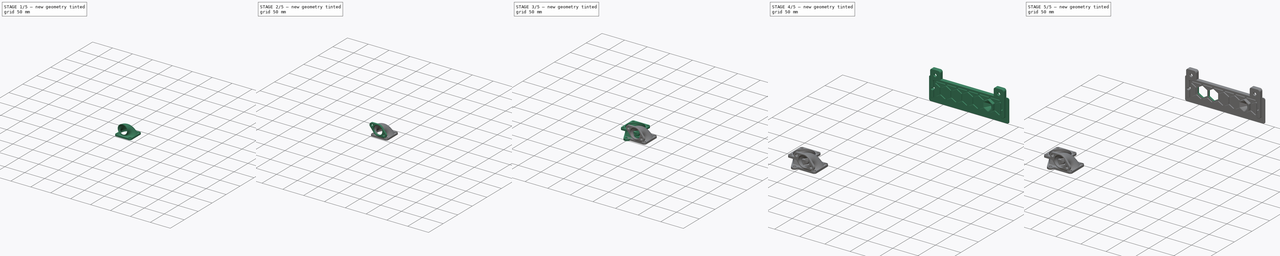
[diagram: build sequence overview — one tinted view per stage of 5, left to right]
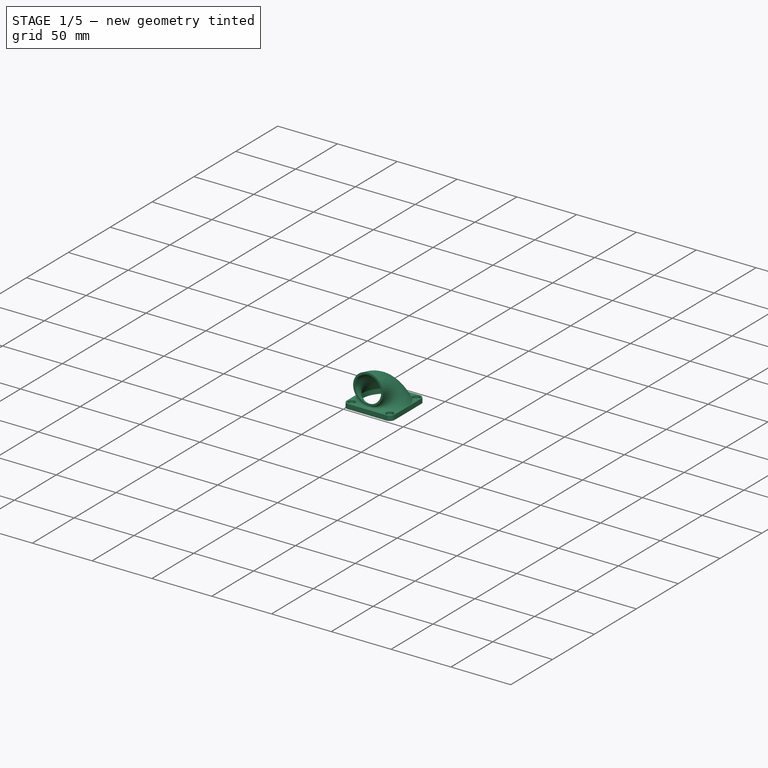
[diagram: stage 1 of 5 — iso view after this stage's code; geometry added in this stage tinted green]
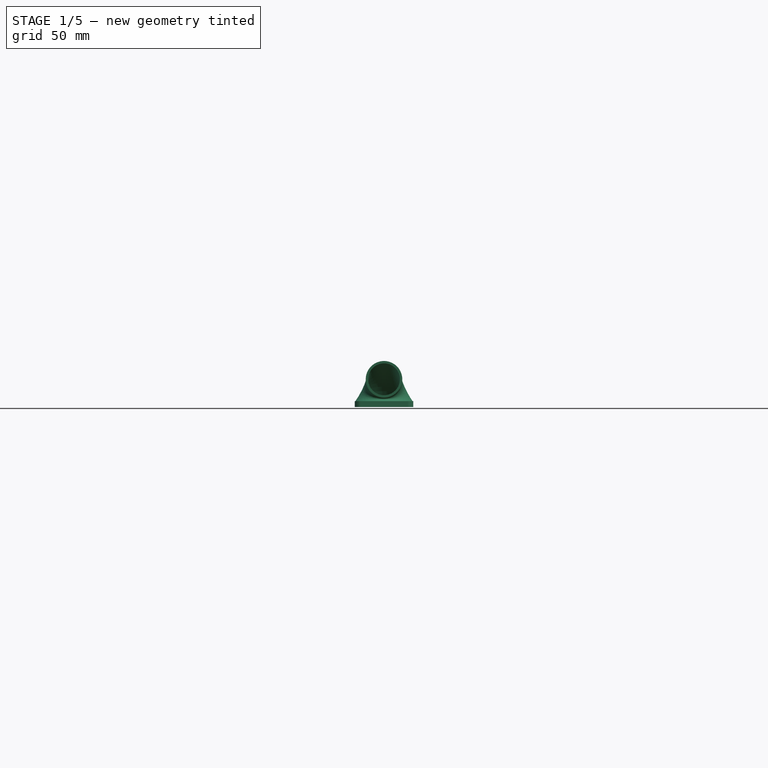
[diagram: stage 1 of 5 — front view after this stage's code; geometry added in this stage tinted green]
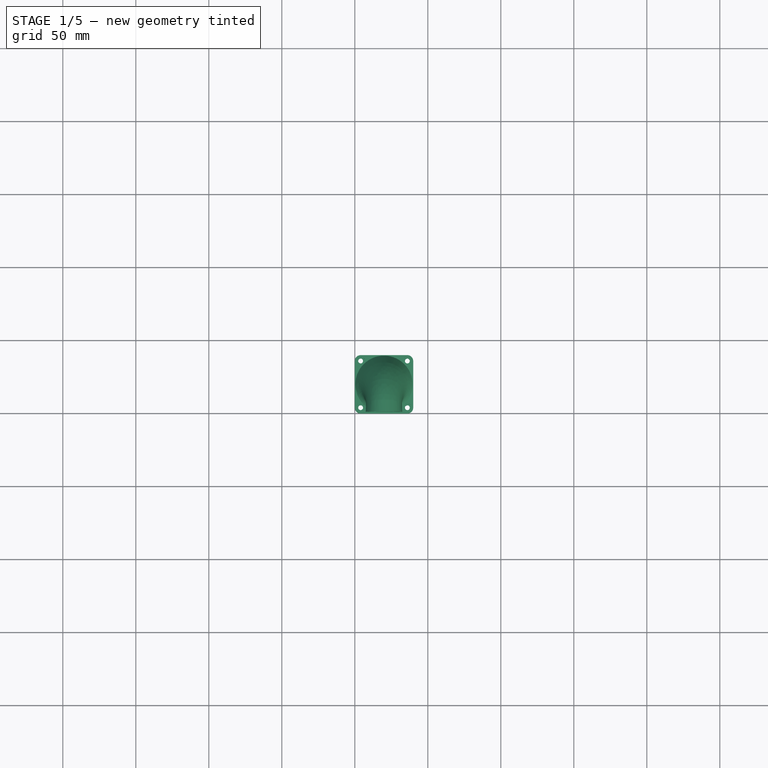
[diagram: stage 1 of 5 — top view after this stage's code; geometry added in this stage tinted green]
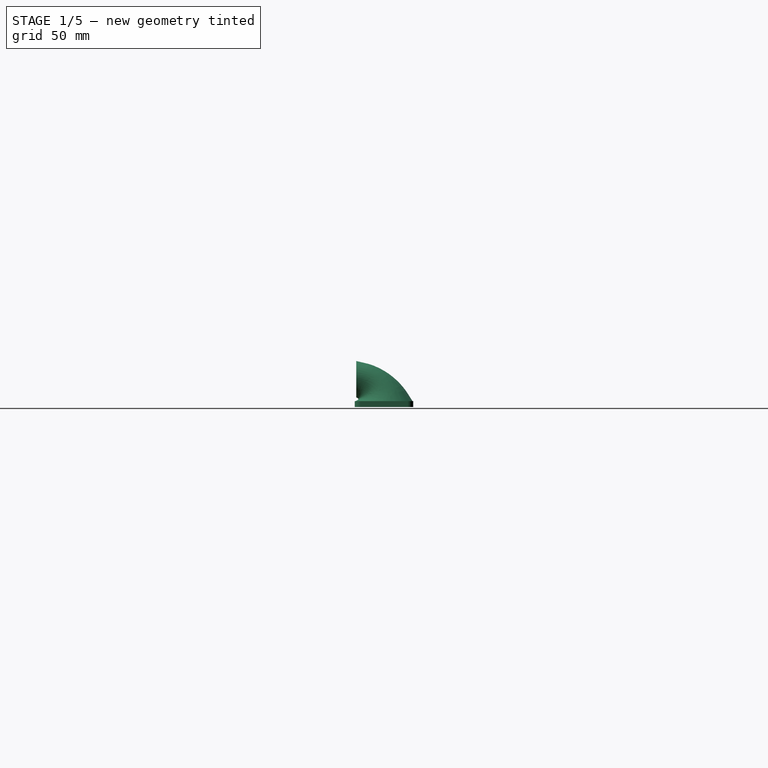
[diagram: stage 1 of 5 — right view after this stage's code; geometry added in this stage tinted green]
FCSTD DOCUMENT  (FreeCAD 1.1R20260414 (Git shallow))
Label: FumeExtraction
License: All rights reserved
LicenseURL: https://en.wikipedia.org/wiki/All_rights_reserved
objects: Sketcher::SketchObject×12, App::Point×4, PartDesign::Pocket×4, PartDesign::Chamfer×4, PartDesign::Pad×4, Part::Feature×3, PartDesign::Body×3, PartDesign::AdditiveLoft×2, PartDesign::FeatureBase×1, Part::DatumPlane×1, PartDesign::Fillet×1, App::Part×1
note: 77 computed .brp shape members not serialized (recipe doc carries the construction recipe); baked Part::Feature solids carry a one-line shape summary decoded from their .brp

FEATURE [PartDesign::Body] Body001  label="ExhaustToFanAdapter"
  AllowCompound = true
  Group = -> [Sketch001,Pad,Sketch002,Pocket002,Sketch003,DatumPlane,Sketch004,AdditiveLoft,Sketch005,Pad001,Chamfer001,Fillet]
  Origin = -> Origin002
  Placement = pos=(0,-0.25,0) rot=(0,0,1;0rad)
  Tip = -> Fillet
FEATURE [Sketcher::SketchObject] Sketch006  label="FanFlangeBodySketch001"
  ArcFitTolerance = 1e-06
  AttachmentSupport = -> [Origin004]
  ExternalTypes = [0]
  FullyConstrained = true
  MakeInternals = false
  MapMode = 5
  _ExternalGeoVersion = 1
  sketch-geometry (20):
    g0: LineSegment StartX=4 StartY=2.425e-13 StartZ=0 EndX=36 EndY=2.425e-13 EndZ=0
    g1: LineSegment StartX=40 StartY=4 StartZ=0 EndX=40 EndY=36 EndZ=0
    g2: LineSegment StartX=36 StartY=40 StartZ=0 EndX=4 EndY=40 EndZ=0
    g3: LineSegment StartX=2.425e-13 StartY=36 StartZ=0 EndX=2.425e-13 EndY=4 EndZ=0
    g4: ArcOfCircle CenterX=4 CenterY=36 CenterZ=0 NormalX=0 NormalY=0 NormalZ=1 AngleXU=0 Radius=4 StartAngle=1.5708 EndAngle=3.14159
    g5: GeomPoint [constr] X=0 Y=40 Z=0
    g6: ArcOfCircle CenterX=36 CenterY=36 CenterZ=0 NormalX=0 NormalY=0 NormalZ=1 AngleXU=0 Radius=4 StartAngle=3e-16 EndAngle=1.5708
    g7: GeomPoint [constr] X=40 Y=40 Z=0
    g8: ArcOfCircle CenterX=36 CenterY=4 CenterZ=0 NormalX=0 NormalY=0 NormalZ=1 AngleXU=0 Radius=4 StartAngle=4.71239 EndAngle=6.28319
    g9: GeomPoint [constr] X=40 Y=0 Z=0
    g10: ArcOfCircle CenterX=4 CenterY=4 CenterZ=0 NormalX=0 NormalY=0 NormalZ=1 AngleXU=0 Radius=4 StartAngle=3.14159 EndAngle=4.71239
    g11: GeomPoint [constr] X=0 Y=0 Z=0
    g12: Circle CenterX=4 CenterY=36 CenterZ=0 NormalX=0 NormalY=0 NormalZ=1 AngleXU=0 Radius=1.65
    g13: Circle CenterX=36 CenterY=36 CenterZ=0 NormalX=0 NormalY=0 NormalZ=1 AngleXU=0 Radius=1.65
    g14: Circle CenterX=36 CenterY=4 CenterZ=0 NormalX=0 NormalY=0 NormalZ=1 AngleXU=0 Radius=1.65
    g15: Circle CenterX=4 CenterY=4 CenterZ=0 NormalX=0 NormalY=0 NormalZ=1 AngleXU=0 Radius=1.65
    g16: LineSegment [constr] StartX=4 StartY=36 StartZ=0 EndX=36 EndY=36 EndZ=0
    g17: LineSegment [constr] StartX=4 StartY=4 StartZ=0 EndX=4 EndY=36 EndZ=0
    g18: GeomPoint [constr] X=20 Y=20 Z=0
    g19: Circle CenterX=20 CenterY=20 CenterZ=0 NormalX=0 NormalY=0 NormalZ=1 AngleXU=0 Radius=18
  constraints (46):
    c: Horizontal(g0)
    c: Horizontal(g2)
    c: Vertical(g1)
    c: Vertical(g3)
    c: Coincident(g11,g-1)
    c: PointOnObject(g5,g3)
    c: PointOnObject(g5,g2)
    c: Tangent(g3,g4) = -1.5708
    c: Tangent(g2,g4) = -1.5708
    c: PointOnObject(g7,g2)
    c: PointOnObject(g7,g1)
    c: Tangent(g2,g6) = -1.5708
    c: Tangent(g1,g6) = -1.5708
    c: PointOnObject(g9,g1)
    c: PointOnObject(g9,g0)
    c: Tangent(g1,g8) = -1.5708
    c: Tangent(g0,g8) = -1.5708
    c: PointOnObject(g11,g0)
    c: PointOnObject(g11,g3)
    c: Tangent(g0,g10) = -1.5708
    c: Tangent(g3,g10) = -1.5708
    c: Radius(g6) = 4
    c: Equal(g6,g4)
    c: Equal(g4,g8)
    c: Equal(g8,g10)
    c: Equal(g2,g1)
    c: DistanceY(g9,g7) = 40
    c: Diameter(g14) = 3.3
    c: Coincident(g16,g12)
    c: Coincident(g16,g13)
    c: Horizontal(g16)
    c: Coincident(g17,g15)
    c: Coincident(g17,g12)
    c: Vertical(g17)
    c: Horizontal(g15,g14)
    c: Vertical(g14,g13)
    c: Equal(g16,g17)
    c: Equal(g14,g13)
    c: Equal(g13,g12)
    c: Equal(g12,g15)
    c: Distance(g18,g-1) = 20
    c: Distance(g18,g-2) = 20
    c: Symmetric(g13,g15,g18)
    c: DistanceX(g16,g16) = 32
    c: Coincident(g19,g18)
    c: Diameter(g19) = 36
FEATURE [PartDesign::Pad] Pad002  label="FanFlangeBody001"
  Direction = (0,0,1)
  Length = 4
  Length2 = 10
  Profile = -> Sketch006
  ReferenceAxis = -> Sketch006 [N_Axis]
  Refine = true
  SideType = 0
  Suppressed = false
  Type = 0
  Type2 = 0
FEATURE [Sketcher::SketchObject] Sketch007  label="FanFlangeCountersinkSketch"
  ArcFitTolerance = 1e-06
  AttachmentSupport = -> [Pad002]
  ExternalGeometry = -> [Pad002]
  ExternalTypes = [0,0,0,0]
  FullyConstrained = true
  MakeInternals = false
  MapMode = 5
  Placement = pos=(0,0,4) rot=(0,0,1;0rad)
  _ExternalGeoVersion = 1
  sketch-geometry (4):
    g0: Circle CenterX=4 CenterY=36 CenterZ=0 NormalX=0 NormalY=0 NormalZ=1 AngleXU=0 Radius=3
    g1: Circle CenterX=36 CenterY=36 CenterZ=0 NormalX=0 NormalY=0 NormalZ=1 AngleXU=0 Radius=3
    g2: Circle CenterX=36 CenterY=4 CenterZ=0 NormalX=0 NormalY=0 NormalZ=1 AngleXU=0 Radius=3
    g3: Circle CenterX=4 CenterY=4 CenterZ=0 NormalX=0 NormalY=0 NormalZ=1 AngleXU=0 Radius=3
  constraints (8):
    c: Coincident(g0,g-6)
    c: Coincident(g1,g-3)
    c: Coincident(g2,g-4)
    c: Coincident(g3,g-5)
    c: Diameter(g1) = 6
    c: Equal(g1,g2)
    c: Equal(g2,g3)
    c: Equal(g3,g0)
FEATURE [PartDesign::Pocket] Pocket003  label="FanFlangeCountersink"
  BaseFeature = -> Pad002
  Direction = (0,0,-1)
  Length = 2
  Length2 = 5
  Profile = -> Sketch007
  ReferenceAxis = -> Sketch007 [N_Axis]
  Refine = true
  SideType = 0
  Suppressed = false
  Type = 0
  Type2 = 0
FEATURE [Sketcher::SketchObject] Sketch008  label="PipeStartSketch"
  ArcFitTolerance = 1e-06
  AttachmentSupport = -> [Pocket003]
  ExternalGeometry = -> [Pocket003]
  ExternalTypes = [0]
  FullyConstrained = true
  MakeInternals = false
  MapMode = 5
  Placement = pos=(0,0,4) rot=(0,0,1;0rad)
  _ExternalGeoVersion = 1
  sketch-geometry (2):
    g0: Circle CenterX=20 CenterY=20 CenterZ=0 NormalX=0 NormalY=0 NormalZ=1 AngleXU=0 Radius=18
    g1: Circle CenterX=20 CenterY=20 CenterZ=0 NormalX=0 NormalY=0 NormalZ=1 AngleXU=0 Radius=19.6
  constraints (4):
    c: Coincident(g0,g-3)
    c: Coincident(g1,g0)
    c: Distance(g0,g1) = 1.6
    c: Equal(g0,g-3)
FEATURE [Sketcher::SketchObject] Sketch009  label="PipeMidSketch"
  ArcFitTolerance = 1e-06
  AttachmentOffset = pos=(0,2,0) rot=(-1,0,0;0.523599rad)
  AttachmentSupport = -> [Origin004]
  ExternalTypes = [0]
  FullyConstrained = true
  MakeInternals = false
  MapMode = 5
  Placement = pos=(0,4e-16,2) rot=(1,0,0;1.0472rad)
  _ExternalGeoVersion = 1
  sketch-geometry (2):
    g0: Circle CenterX=20 CenterY=17 CenterZ=0 NormalX=0 NormalY=0 NormalZ=1 AngleXU=0 Radius=10.9
    g1: Circle CenterX=20 CenterY=17 CenterZ=0 NormalX=0 NormalY=0 NormalZ=1 AngleXU=0 Radius=12.5
  constraints (5):
    c: Coincident(g1,g0)
    c: Diameter(g1) = 25
    c: Distance(g0,g-1) = 17
    c: Distance(g0,g-2) = 20
    c: Distance(g1,g0) = 1.6
FEATURE [Sketcher::SketchObject] Sketch010  label="PipeFinishSketch"
  ArcFitTolerance = 1e-06
  AttachmentOffset = pos=(0,3,-1) rot=(0,0,1;0rad)
  AttachmentSupport = -> [Origin004]
  ExternalTypes = [0]
  FullyConstrained = true
  MakeInternals = false
  MapMode = 5
  Placement = pos=(0,1,3) rot=(1,0,0;1.5708rad)
  _ExternalGeoVersion = 1
  sketch-geometry (2):
    g0: Circle CenterX=20 CenterY=16 CenterZ=0 NormalX=0 NormalY=0 NormalZ=1 AngleXU=0 Radius=10.9
    g1: Circle CenterX=20 CenterY=16 CenterZ=0 NormalX=0 NormalY=0 NormalZ=1 AngleXU=0 Radius=12.5
  constraints (5):
    c: Coincident(g1,g0)
    c: Distance(g0,g-1) = 16
    c: Distance(g0,g-2) = 20
    c: Diameter(g1) = 25
    c: Distance(g0,g1) = 1.6
FEATURE [PartDesign::AdditiveLoft] AdditiveLoft001
  BaseFeature = -> Pocket003
  Closed = false
  Profile = -> Sketch008
  Refine = true
  Ruled = false
  Sections = -> [Sketch009,Sketch010]
  Suppressed = false
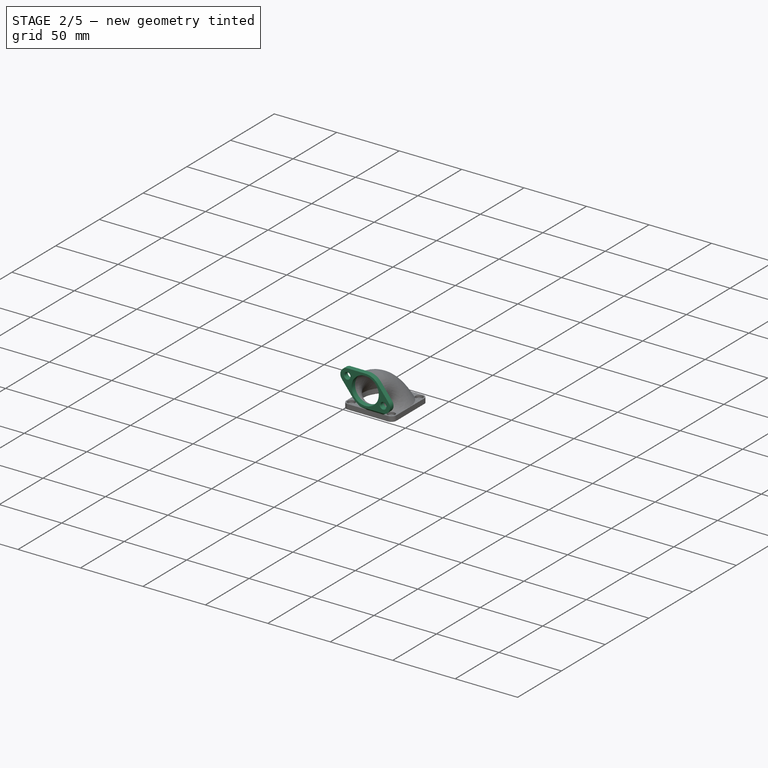
[diagram: stage 2 of 5 — iso view after this stage's code; geometry added in this stage tinted green]
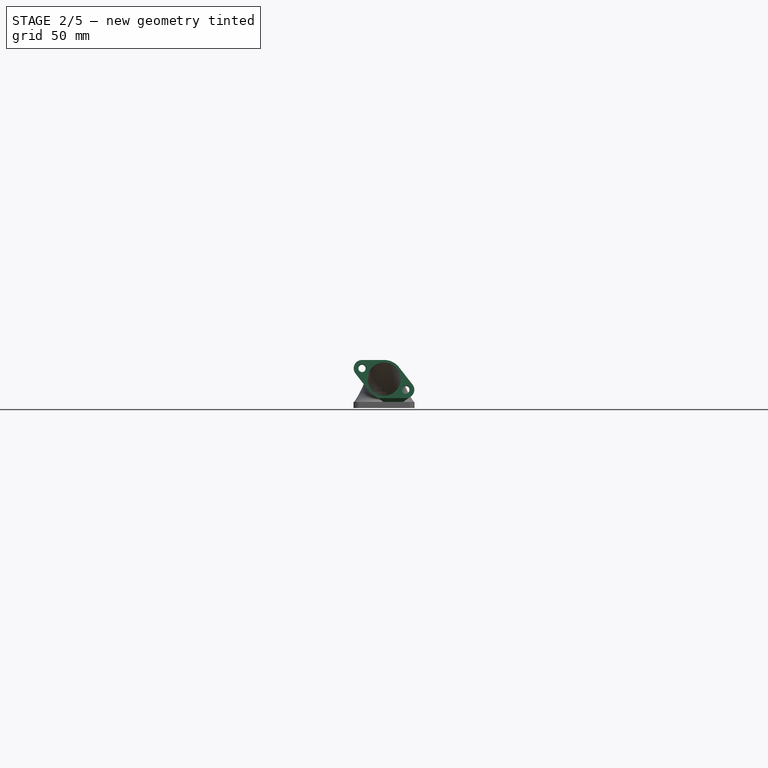
[diagram: stage 2 of 5 — front view after this stage's code; geometry added in this stage tinted green]
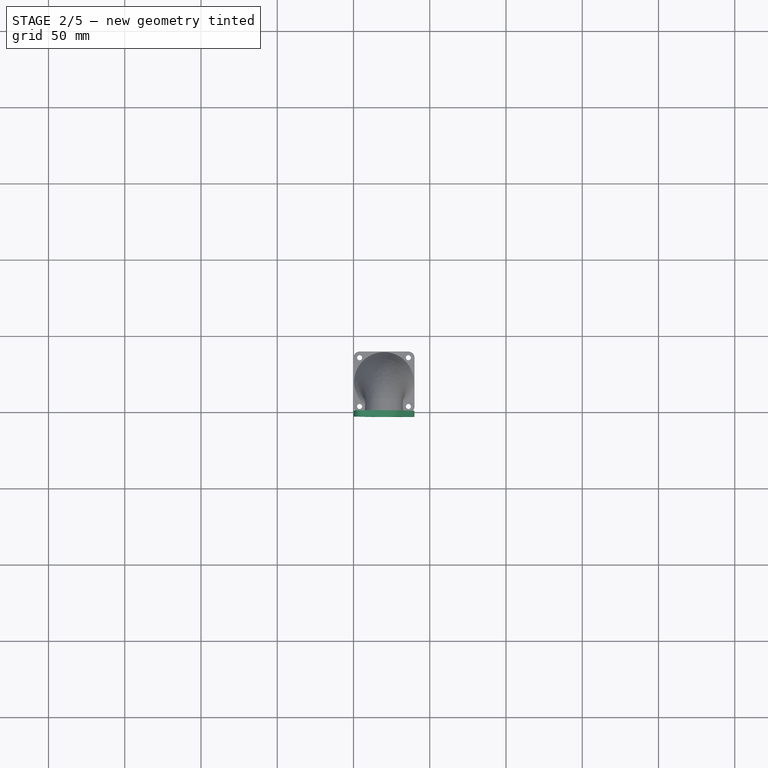
[diagram: stage 2 of 5 — top view after this stage's code; geometry added in this stage tinted green]
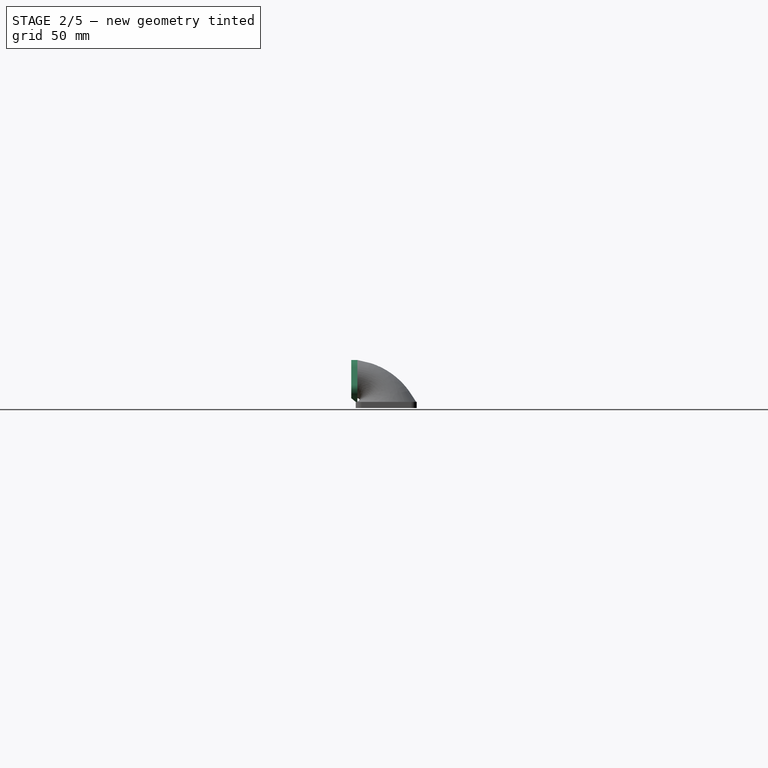
[diagram: stage 2 of 5 — right view after this stage's code; geometry added in this stage tinted green]
FEATURE [Sketcher::SketchObject] Sketch011  label="OutletFlangeSketch"
  ArcFitTolerance = 1e-06
  AttachmentSupport = -> [AdditiveLoft001]
  ExternalGeometry = -> [AdditiveLoft001]
  ExternalTypes = [0,0]
  FullyConstrained = true
  MakeInternals = false
  MapMode = 5
  Placement = pos=(0,1,0) rot=(1,0,0;1.5708rad)
  _ExternalGeoVersion = 1
  sketch-geometry (13):
    g0: Circle CenterX=20 CenterY=19 CenterZ=0 NormalX=0 NormalY=0 NormalZ=1 AngleXU=0 Radius=10.9
    g1: ArcOfCircle CenterX=20 CenterY=19 CenterZ=0 NormalX=0 NormalY=0 NormalZ=1 AngleXU=0 Radius=12.5 StartAngle=0.665163 EndAngle=1.5708
    g2: ArcOfCircle CenterX=5.61251 CenterY=26 CenterZ=0 NormalX=0 NormalY=0 NormalZ=1 AngleXU=0 Radius=5.5 StartAngle=1.5708 EndAngle=3.80676
    g3: ArcOfCircle CenterX=34.3875 CenterY=12 CenterZ=0 NormalX=0 NormalY=0 NormalZ=1 AngleXU=0 Radius=5.5 StartAngle=5.32325 EndAngle=6.94835
    g4: LineSegment StartX=29.8352 StartY=26.7148 StartZ=0 EndX=38.715 EndY=15.3945 EndZ=0
    g5: LineSegment StartX=20 StartY=31.5 StartZ=0 EndX=5.61251 EndY=31.5 EndZ=0
    g6: LineSegment StartX=32.5513 StartY=4 StartZ=0 EndX=37.5422 EndY=7.49466 EndZ=0
    g7: Circle CenterX=5.61251 CenterY=26 CenterZ=0 NormalX=0 NormalY=0 NormalZ=1 AngleXU=0 Radius=2.35
    g8: Circle CenterX=34.3875 CenterY=12 CenterZ=0 NormalX=0 NormalY=0 NormalZ=1 AngleXU=0 Radius=2.35
    g9: LineSegment StartX=1.28502 StartY=22.6055 StartZ=0 EndX=10.1648 EndY=11.2852 EndZ=0
    g10: LineSegment StartX=19.6291 StartY=4 StartZ=0 EndX=32.5513 EndY=4 EndZ=0
    g11: ArcOfCircle CenterX=20 CenterY=19 CenterZ=0 NormalX=0 NormalY=0 NormalZ=1 AngleXU=0 Radius=12.5 StartAngle=3.80676 EndAngle=4.10152
    g12: LineSegment StartX=19.6291 StartY=4 StartZ=0 EndX=12.8303 EndY=8.7606 EndZ=0
  constraints (30):
    c: Distance(g0,g-1) = 19
    c: Distance(g0,g-2) = 20
    c: Diameter(g0) = 21.8
    c: Coincident(g1,g0)
    c: Tangent(g4,g3) = 1.5708
    c: Tangent(g6,g3) = -1.5708
    c: Tangent(g4,g1) = 1.5708
    c: Tangent(g5,g1) = -1.5708
    c: Tangent(g5,g2) = -1.5708
    c: Radius(g1) = 12.5
    c: Symmetric(g2,g3,g0)
    c: Equal(g3,g2)
    c: Radius(g3) = 5.5
    c: Diameter(g7) = 4.7
    c: Equal(g7,g8)
    c: Coincident(g8,g3)
    c: Coincident(g7,g2)
    c: Distance(g2,g3) = 32
    c: Horizontal(g10)
    c: Tangent(g9,g2) = -1.5708
    c: Coincident(g6,g10)
    c: Distance(g6,g-1) = 4
    c: Horizontal(g5)
    c: Angle(g6,g10) = 2.53073
    c: Coincident(g11,g0)
    c: Coincident(g12,g10)
    c: Tangent(g12,g11) = 1.5708
    c: Tangent(g11,g9) = -1.5708
    c: Equal(g1,g11)
    c: Angle(g10,g12) = 2.53073
FEATURE [App::Point] Origin005
  Role = Origin
FEATURE [PartDesign::Pad] Pad003  label="OutletFlange"
  BaseFeature = -> AdditiveLoft001
  Direction = (0,-1,2e-16)
  Length = 4
  Length2 = 10
  Profile = -> Sketch011
  ReferenceAxis = -> Sketch011 [N_Axis]
  Refine = true
  SideType = 0
  Suppressed = false
  Type = 0
  Type2 = 0
FEATURE [Part::Feature] Part__Feature  label="40mm fan v2"
  shape: bbox 40 x 10 x 40 mm, 104 faces (baked)
FEATURE [Part::Feature] Part__Feature1576  label="40mm fan v001"
  shape: bbox 37.68 x 7.505 x 37.45 mm, 115 faces (baked)
FEATURE [App::Part] _40mm_fan_v2  label="40mm fan v002"
  Group = -> [Part__Feature,Part__Feature1576]
  Origin = -> Origin006
  Placement = pos=(9e-16,27,25) rot=(0,-0.707107,0.707107;3.14159rad)
FEATURE [App::Point] Origin007  label="Origin"
  Role = Origin
FEATURE [PartDesign::Chamfer] Chamfer003  label="OverhangChamfer003"
  Angle = 45
  Base = -> Pad003 [Edge38]
  BaseFeature = -> Pad003
  ChamferType = 1
  FlipDirection = false
  Refine = true
  Size = 2.999
  Size2 = 2.5
  SupportTransform = false
  Suppressed = false
  UseAllEdges = false
FEATURE [PartDesign::Chamfer] Chamfer004  label="CornersChamfer004"
  Angle = 45
  Base = -> Chamfer003 [Edge62,Edge63,Edge66,Edge65,Edge64,Edge44,Edge45]
  BaseFeature = -> Chamfer003
  ChamferType = 0
  FlipDirection = false
  Refine = true
  Size = 0.4
  Size2 = 1
  SupportTransform = false
  Suppressed = false
  UseAllEdges = false
FEATURE [PartDesign::Body] Body002  label="FanToHoseAdapter"
  AllowCompound = true
  Group = -> [Sketch006,Pad002,Sketch007,Pocket003,Sketch008,Sketch009,Sketch010,AdditiveLoft001,Sketch011,Pad003,Chamfer003,Chamfer004]
  Origin = -> Origin004
  Placement = pos=(-20,7,26) rot=(0,0,1;0rad)
  Tip = -> Chamfer004
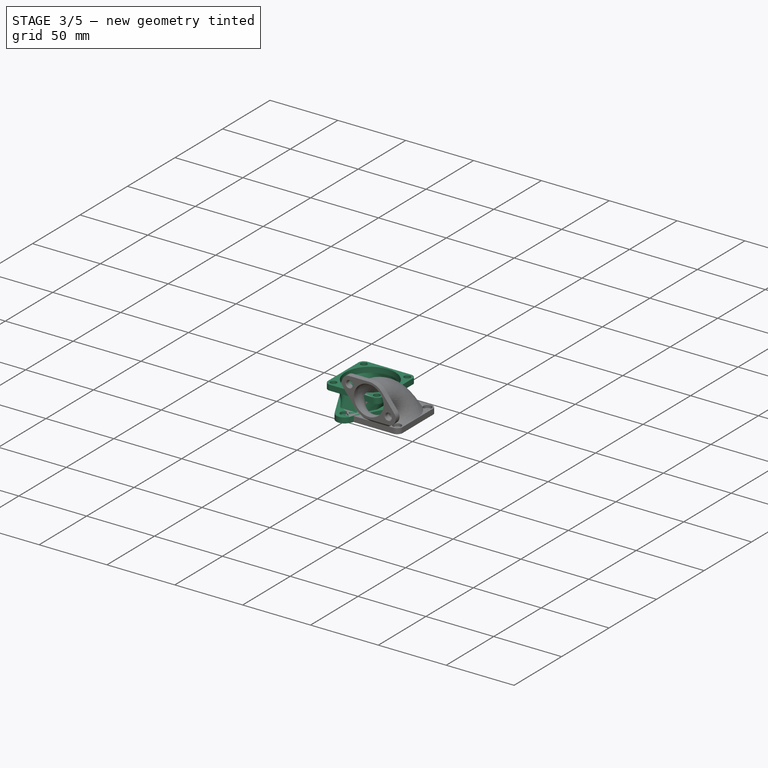
[diagram: stage 3 of 5 — iso view after this stage's code; geometry added in this stage tinted green]
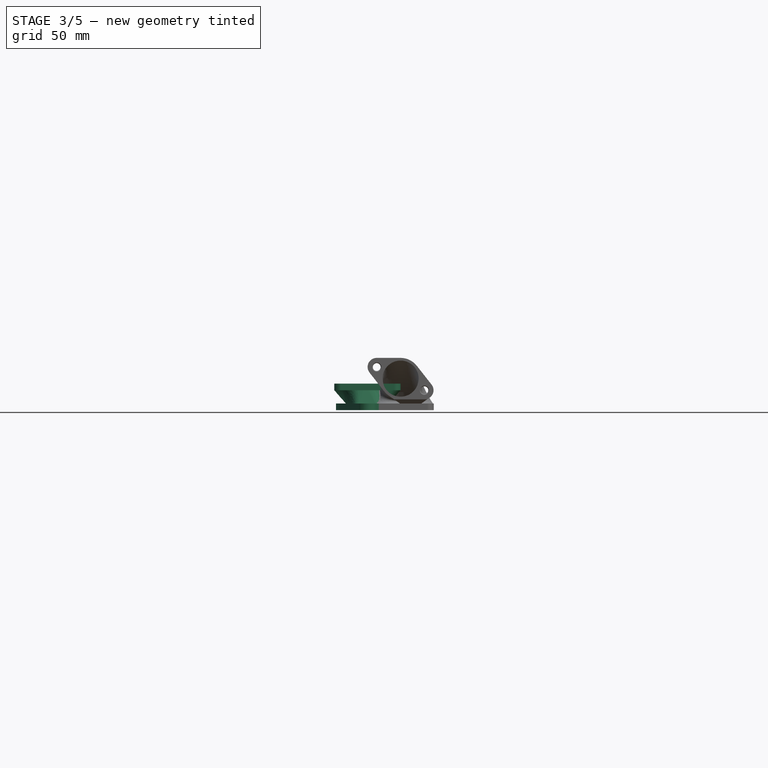
[diagram: stage 3 of 5 — front view after this stage's code; geometry added in this stage tinted green]
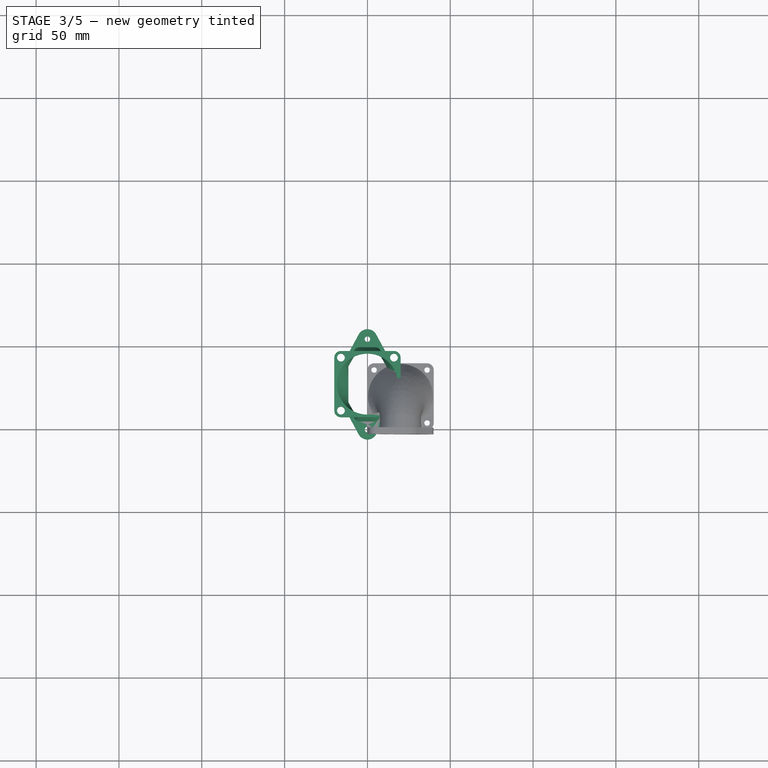
[diagram: stage 3 of 5 — top view after this stage's code; geometry added in this stage tinted green]
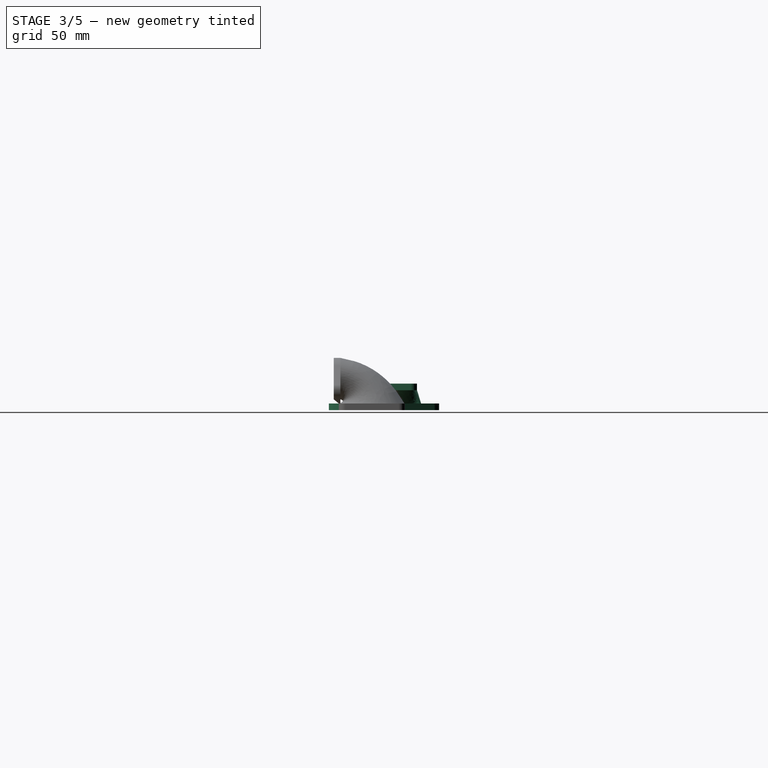
[diagram: stage 3 of 5 — right view after this stage's code; geometry added in this stage tinted green]
FEATURE [PartDesign::Body] Body  label="ExhaustCoverR2WithVent"
  AllowCompound = true
  BaseFeature = -> Part__Feature1575
  Group = -> [BaseFeature,Pocket,Sketch,Pocket001,Chamfer]
  Origin = -> Origin
  Placement = pos=(-108.75,-150.85,-196.5) rot=(0.57735,0.57735,0.57735;2.0944rad)
  Tip = -> Chamfer
FEATURE [Sketcher::SketchObject] Sketch001  label="ExhaustFlangeBodySketch"
  ArcFitTolerance = 1e-06
  AttachmentSupport = -> [Origin002]
  ExternalTypes = [0]
  FullyConstrained = true
  MakeInternals = false
  MapMode = 5
  _ExternalGeoVersion = 1
  sketch-geometry (26):
    g0: ArcOfCircle CenterX=0 CenterY=54.6 CenterZ=0 NormalX=0 NormalY=0 NormalZ=1 AngleXU=0 Radius=6 StartAngle=0.496317 EndAngle=2.64528
    g1: ArcOfCircle CenterX=0 CenterY=0 CenterZ=0 NormalX=0 NormalY=0 NormalZ=1 AngleXU=0 Radius=6 StartAngle=3.63791 EndAngle=5.78687
    g2: LineSegment StartX=5.27605 StartY=57.4571 StartZ=0 EndX=16.7075 EndY=36.3476 EndZ=0
    g3: LineSegment StartX=5.27605 StartY=-2.85714 StartZ=0 EndX=16.7075 EndY=18.2524 EndZ=0
    g4: LineSegment StartX=-5.27605 StartY=-2.85714 StartZ=0 EndX=-16.7075 EndY=18.2524 EndZ=0
    g5: LineSegment StartX=-5.27605 StartY=57.4571 StartZ=0 EndX=-16.7075 EndY=36.3476 EndZ=0
    g6: ArcOfCircle CenterX=0 CenterY=27.3 CenterZ=0 NormalX=0 NormalY=0 NormalZ=1 AngleXU=0 Radius=19 StartAngle=5.78687 EndAngle=6.7795
    g7: ArcOfCircle CenterX=0 CenterY=27.3 CenterZ=0 NormalX=0 NormalY=0 NormalZ=1 AngleXU=0 Radius=19 StartAngle=2.64528 EndAngle=3.63791
    g8: Circle CenterX=0 CenterY=54.6 CenterZ=0 NormalX=0 NormalY=0 NormalZ=1 AngleXU=0 Radius=1.65
    g9: Circle CenterX=0 CenterY=0 CenterZ=0 NormalX=0 NormalY=0 NormalZ=1 AngleXU=0 Radius=1.65
    g10: LineSegment StartX=-4.75 StartY=48.1 StartZ=0 EndX=4.75 EndY=48.1 EndZ=0
    g11: LineSegment StartX=6.30885 StartY=47.2 StartZ=0 EndX=11.2588 EndY=38.6263 EndZ=0
    g12: LineSegment StartX=11.5 StartY=37.7263 StartZ=0 EndX=11.5 EndY=16.8737 EndZ=0
    g13: LineSegment StartX=11.2588 StartY=15.9737 StartZ=0 EndX=6.30885 EndY=7.4 EndZ=0
    g14: LineSegment StartX=4.75 StartY=6.5 StartZ=0 EndX=-4.75 EndY=6.5 EndZ=0
    g15: LineSegment StartX=-6.30885 StartY=7.4 StartZ=0 EndX=-11.2588 EndY=15.9737 EndZ=0
    g16: LineSegment StartX=-11.5 StartY=16.8737 StartZ=0 EndX=-11.5 EndY=37.7263 EndZ=0
    g17: LineSegment StartX=-11.2588 StartY=38.6263 StartZ=0 EndX=-6.30885 EndY=47.2 EndZ=0
    g18: ArcOfCircle CenterX=-4.75 CenterY=46.3 CenterZ=0 NormalX=0 NormalY=0 NormalZ=1 AngleXU=0 Radius=1.8 StartAngle=1.5708 EndAngle=2.61799
    g19: ArcOfCircle CenterX=4.75 CenterY=46.3 CenterZ=0 NormalX=0 NormalY=0 NormalZ=1 AngleXU=0 Radius=1.8 StartAngle=0.523599 EndAngle=1.5708
    g20: ArcOfCircle CenterX=-9.7 CenterY=37.7263 CenterZ=0 NormalX=0 NormalY=0 NormalZ=1 AngleXU=0 Radius=1.8 StartAngle=2.61799 EndAngle=3.14159
    g21: ArcOfCircle CenterX=9.7 CenterY=37.7263 CenterZ=0 NormalX=0 NormalY=0 NormalZ=1 AngleXU=0 Radius=1.8 StartAngle=-1.8e-15 EndAngle=0.523599
    g22: ArcOfCircle CenterX=-4.75 CenterY=8.3 CenterZ=0 NormalX=0 NormalY=0 NormalZ=1 AngleXU=0 Radius=1.8 StartAngle=3.66519 EndAngle=4.71239
    g23: ArcOfCircle CenterX=4.75 CenterY=8.3 CenterZ=0 NormalX=0 NormalY=0 NormalZ=1 AngleXU=0 Radius=1.8 StartAngle=4.71239 EndAngle=5.75959
    g24: ArcOfCircle CenterX=-9.7 CenterY=16.8737 CenterZ=0 NormalX=0 NormalY=0 NormalZ=1 AngleXU=0 Radius=1.8 StartAngle=3.14159 EndAngle=3.66519
    g25: ArcOfCircle CenterX=9.7 CenterY=16.8737 CenterZ=0 NormalX=0 NormalY=0 NormalZ=1 AngleXU=0 Radius=1.8 StartAngle=5.75959 EndAngle=6.28319
  constraints (61):
    c: Coincident(g5,g0)
    c: Tangent(g2,g0) = 1.5708
    c: Tangent(g6,g2) = 1.5708
    c: Tangent(g6,g3) = -1.5708
    c: Tangent(g3,g1) = -1.5708
    c: Tangent(g1,g4) = 1.5708
    c: Tangent(g7,g4) = 1.5708
    c: Tangent(g7,g5) = -1.5708
    c: Equal(g7,g6)
    c: Equal(g0,g1)
    c: Equal(g5,g2)
    c: Equal(g2,g3)
    c: Radius(g0) = 6
    c: Vertical(g1,g0)
    c: DistanceY(g1,g0) = 54.6
    c: Coincident(g6,g7)
    c: Vertical(g6,g0)
    c: Coincident(g1,g-1)
    c: Radius(g6) = 19
    c: Coincident(g8,g0)
    c: Coincident(g9,g1)
    c: Diameter(g9) = 3.3
    c: Equal(g8,g9)
    c: Vertical(g12)
    c: Vertical(g16)
    c: Distance(g1,g14) = 6.5
    c: Distance(g0,g10) = 6.5
    c: Distance(g12,g-2) = 11.5
    c: Symmetric(g14,g14,g-2)
    c: Symmetric(g10,g10,g-2)
    c: Tangent(g18,g10) = 1.5708
    c: Tangent(g18,g17) = 1.5708
    c: Tangent(g19,g10) = 1.5708
    c: Tangent(g19,g11) = 1.5708
    c: DistanceX(g10,g10) = 9.5
    c: Radius(g18) = 1.8
    c: Equal(g18,g19)
    c: Angle(g17,g10) = 2.0944
    c: Angle(g10,g11) = 2.0944
    c: Tangent(g21,g11) = 1.5708
    c: Tangent(g21,g12) = 1.5708
    c: Tangent(g20,g17) = 1.5708
    c: Tangent(g20,g16) = 1.5708
    c: Equal(g18,g20)
    c: Equal(g20,g21)
    c: Equal(g14,g10)
    c: Tangent(g22,g14) = 1.5708
    c: Tangent(g22,g15) = 1.5708
    c: Tangent(g23,g14) = 1.5708
    c: Tangent(g23,g13) = 1.5708
    c: Equal(g18,g22)
    c: Equal(g22,g23)
    c: Parallel(g11,g15)
    c: Parallel(g17,g13)
    c: Tangent(g24,g16) = 1.5708
    c: Tangent(g24,g15) = 1.5708
    c: Tangent(g25,g13) = 1.5708
    c: Tangent(g25,g12) = 1.5708
    c: Equal(g18,g24)
    c: Equal(g24,g25)
    c: Distance(g-2,g16) = 11.5
FEATURE [PartDesign::Pad] Pad  label="ExhaustFlangeBody"
  Direction = (0,0,1)
  Length = 4
  Length2 = 10
  Profile = -> Sketch001
  ReferenceAxis = -> Sketch001 [N_Axis]
  Refine = true
  SideType = 0
  Suppressed = false
  Type = 0
  Type2 = 0
FEATURE [Sketcher::SketchObject] Sketch002  label="ExhaustFlangeHoleCountersinkSketch"
  ArcFitTolerance = 1e-06
  AttachmentSupport = -> [Pad]
  ExternalGeometry = -> [Pad]
  ExternalTypes = [0,0]
  FullyConstrained = true
  MakeInternals = false
  MapMode = 5
  Placement = pos=(0,0,4) rot=(0,0,1;0rad)
  _ExternalGeoVersion = 1
  sketch-geometry (2):
    g0: Circle CenterX=0 CenterY=54.6 CenterZ=0 NormalX=0 NormalY=0 NormalZ=1 AngleXU=0 Radius=3
    g1: Circle CenterX=0 CenterY=0 CenterZ=0 NormalX=0 NormalY=0 NormalZ=1 AngleXU=0 Radius=3
  constraints (4):
    c: Coincident(g0,g-3)
    c: Coincident(g1,g-4)
    c: Diameter(g0) = 6
    c: Equal(g0,g1)
FEATURE [PartDesign::Pocket] Pocket002  label="ExhaustFlangeCountersink"
  BaseFeature = -> Pad
  Direction = (0,0,-1)
  Length = 2
  Length2 = 5
  Profile = -> Sketch002
  ReferenceAxis = -> Sketch002 [N_Axis]
  Refine = true
  SideType = 0
  Suppressed = false
  Type = 0
  Type2 = 0
FEATURE [Sketcher::SketchObject] Sketch003  label="LoftStartSketch"
  ArcFitTolerance = 1e-06
  AttachmentSupport = -> [Pocket002]
  ExternalGeometry = -> [Pocket002]
  ExternalTypes = [0,0,0,0,0,0,0,0]
  FullyConstrained = true
  MakeInternals = false
  MapMode = 5
  Placement = pos=(0,0,4) rot=(0,0,1;0rad)
  _ExternalGeoVersion = 1
  sketch-geometry (32):
    g0: LineSegment StartX=-11.5 StartY=37.7263 StartZ=0 EndX=-11.5 EndY=16.8737 EndZ=0
    g1: LineSegment StartX=11.5 StartY=37.7263 StartZ=0 EndX=11.5 EndY=16.8737 EndZ=0
    g2: LineSegment StartX=-11.2588 StartY=15.9737 StartZ=0 EndX=-6.30885 EndY=7.4 EndZ=0
    g3: LineSegment StartX=6.30885 StartY=7.4 StartZ=0 EndX=11.2588 EndY=15.9737 EndZ=0
    g4: LineSegment StartX=-4.75 StartY=6.5 StartZ=0 EndX=4.75 EndY=6.5 EndZ=0
    g5: ArcOfCircle CenterX=-4.75 CenterY=8.3 CenterZ=0 NormalX=0 NormalY=0 NormalZ=1 AngleXU=0 Radius=1.8 StartAngle=3.66519 EndAngle=4.71239
    g6: ArcOfCircle CenterX=-9.7 CenterY=16.8737 CenterZ=0 NormalX=0 NormalY=0 NormalZ=1 AngleXU=0 Radius=1.8 StartAngle=3.14159 EndAngle=3.66519
    g7: ArcOfCircle CenterX=-9.7 CenterY=37.7263 CenterZ=0 NormalX=0 NormalY=0 NormalZ=1 AngleXU=0 Radius=1.8 StartAngle=2.61799 EndAngle=3.14159
    g8: LineSegment StartX=-6.30885 StartY=47.2 StartZ=0 EndX=-11.2588 EndY=38.6263 EndZ=0
    g9: ArcOfCircle CenterX=4.75 CenterY=8.3 CenterZ=0 NormalX=0 NormalY=0 NormalZ=1 AngleXU=0 Radius=1.8 StartAngle=4.71239 EndAngle=5.75959
    g10: ArcOfCircle CenterX=9.7 CenterY=16.8737 CenterZ=0 NormalX=0 NormalY=0 NormalZ=1 AngleXU=0 Radius=1.8 StartAngle=5.75959 EndAngle=6.28319
    g11: ArcOfCircle CenterX=9.7 CenterY=37.7263 CenterZ=0 NormalX=0 NormalY=0 NormalZ=1 AngleXU=0 Radius=1.8 StartAngle=-9e-16 EndAngle=0.523599
    g12: LineSegment StartX=-4.75 StartY=48.1 StartZ=0 EndX=4.75 EndY=48.1 EndZ=0
    g13: ArcOfCircle CenterX=-4.75 CenterY=46.3 CenterZ=0 NormalX=0 NormalY=0 NormalZ=1 AngleXU=0 Radius=1.8 StartAngle=1.5708 EndAngle=2.61799
    g14: ArcOfCircle CenterX=4.75 CenterY=46.3 CenterZ=0 NormalX=0 NormalY=0 NormalZ=1 AngleXU=0 Radius=1.8 StartAngle=0.523599 EndAngle=1.5708
    g15: LineSegment StartX=6.30885 StartY=47.2 StartZ=0 EndX=11.2588 EndY=38.6263 EndZ=0
    g16: LineSegment StartX=-4.75 StartY=49.7 StartZ=0 EndX=4.75 EndY=49.7 EndZ=0
    g17: ArcOfCircle CenterX=-4.75 CenterY=46.3 CenterZ=0 NormalX=0 NormalY=0 NormalZ=1 AngleXU=0 Radius=3.4 StartAngle=1.5708 EndAngle=2.618
    g18: LineSegment StartX=-7.6945 StartY=48 StartZ=0 EndX=-12.6445 EndY=39.4263 EndZ=0
    g19: ArcOfCircle CenterX=-9.7 CenterY=37.7263 CenterZ=0 NormalX=0 NormalY=0 NormalZ=1 AngleXU=0 Radius=3.4 StartAngle=2.61799 EndAngle=3.14159
    g20: LineSegment StartX=-13.1 StartY=37.7263 StartZ=0 EndX=-13.1 EndY=16.8737 EndZ=0
    g21: ArcOfCircle CenterX=-9.7 CenterY=16.8737 CenterZ=0 NormalX=0 NormalY=0 NormalZ=1 AngleXU=0 Radius=3.4 StartAngle=3.14159 EndAngle=3.66519
    g22: LineSegment StartX=-12.6445 StartY=15.1737 StartZ=0 EndX=-7.69449 EndY=6.6 EndZ=0
    g23: ArcOfCircle CenterX=-4.75 CenterY=8.3 CenterZ=0 NormalX=0 NormalY=0 NormalZ=1 AngleXU=0 Radius=3.4 StartAngle=3.66519 EndAngle=4.71239
    g24: LineSegment StartX=-4.75 StartY=4.9 StartZ=0 EndX=4.75 EndY=4.9 EndZ=0
    g25: ArcOfCircle CenterX=4.75 CenterY=8.3 CenterZ=0 NormalX=0 NormalY=0 NormalZ=1 AngleXU=0 Radius=3.4 StartAngle=4.71239 EndAngle=5.75959
    g26: LineSegment StartX=7.69449 StartY=6.6 StartZ=0 EndX=12.6445 EndY=15.1737 EndZ=0
    g27: ArcOfCircle CenterX=9.7 CenterY=16.8737 CenterZ=0 NormalX=0 NormalY=0 NormalZ=1 AngleXU=0 Radius=3.4 StartAngle=5.75959 EndAngle=6.28319
    g28: LineSegment StartX=13.1 StartY=16.8737 StartZ=0 EndX=13.1 EndY=37.7263 EndZ=0
    g29: ArcOfCircle CenterX=9.7 CenterY=37.7263 CenterZ=0 NormalX=0 NormalY=0 NormalZ=1 AngleXU=0 Radius=3.4 StartAngle=-9e-16 EndAngle=0.523599
    g30: LineSegment StartX=12.6445 StartY=39.4263 StartZ=0 EndX=7.69449 EndY=48 EndZ=0
    g31: ArcOfCircle CenterX=4.75 CenterY=46.3 CenterZ=0 NormalX=0 NormalY=0 NormalZ=1 AngleXU=0 Radius=3.4 StartAngle=0.523599 EndAngle=1.5708
  constraints (65):
    c: Coincident(g4,g-9)
    c: Coincident(g4,g-10)
    c: Coincident(g5,g-9)
    c: Coincident(g5,g4)
    c: Tangent(g5,g2) = -1.5708
    c: Coincident(g6,g-8)
    c: Tangent(g2,g6) = -1.5708
    c: Equal(g6,g-8)
    c: Tangent(g0,g6) = -1.5708
    c: Coincident(g7,g-6)
    c: Tangent(g7,g0) = -1.5708
    c: Equal(g-6,g7)
    c: Tangent(g7,g8) = -1.5708
    c: Equal(g-10,g9)
    c: Tangent(g9,g4) = -1.5708
    c: Tangent(g3,g9) = -1.5708
    c: Coincident(g10,g-7)
    c: Tangent(g10,g3) = -1.5708
    c: Equal(g10,g-7)
    c: Tangent(g10,g1) = 1.5708
    c: Coincident(g11,g-5)
    c: Tangent(g1,g11) = 1.5708
    c: Equal(g-5,g11)
    c: Coincident(g13,g-3)
    c: Tangent(g13,g8) = -1.5708
    c: Tangent(g13,g12) = 1.5708
    c: Equal(g13,g-3)
    c: Coincident(g14,g-4)
    c: Tangent(g14,g12) = 1.5708
    c: Tangent(g14,g15) = 1.5708
    c: Equal(g14,g-4)
    c: Tangent(g15,g11) = 1.5708
    c: Horizontal(g16)
    c: Distance(g16,g12) = 1.6
    c: Coincident(g17,g13)
    c: Tangent(g17,g16) = 1.5708
    c: Coincident(g18,g17)
    c: Parallel(g8,g18)
    c: Coincident(g19,g7)
    c: Tangent(g19,g18) = -1.5708
    c: Coincident(g21,g6)
    c: Tangent(g21,g20) = -1.5708
    c: Coincident(g23,g5)
    c: Tangent(g22,g21) = -1.5708
    c: Tangent(g23,g22) = -1.5708
    c: Tangent(g24,g23) = -1.5708
    c: Coincident(g25,g9)
    c: Tangent(g25,g24) = -1.5708
    c: Tangent(g26,g25) = -1.5708
    c: Coincident(g27,g10)
    c: Tangent(g27,g26) = -1.5708
    c: Coincident(g29,g11)
    c: Coincident(g31,g14)
    c: Tangent(g31,g16) = 1.5708
    c: Tangent(g31,g30) = -1.5708
    c: Tangent(g30,g29) = -1.5708
    c: Tangent(g29,g28) = -1.5708
    c: Tangent(g28,g27) = -1.5708
    c: DistanceX(g1,g28) = 1.6
    c: Vertical(g28)
    c: DistanceX(g19,g0) = 1.6
    c: Vertical(g20)
    c: Horizontal(g24)
    c: DistanceY(g23,g4) = 1.6
    c: Tangent(g20,g19) = -1.5708
FEATURE [Part::DatumPlane] DatumPlane
  AttachmentOffset = pos=(0,0,8) rot=(0,0,1;0rad)
  AttachmentSupport = -> [Pocket002]
  MapMode = 5
  Placement = pos=(0,0,12) rot=(0,0,1;0rad)
FEATURE [Sketcher::SketchObject] Sketch004  label="LoftFinishSketch"
  ArcFitTolerance = 1e-06
  AttachmentSupport = -> [DatumPlane]
  ExternalTypes = [0]
  FullyConstrained = true
  MakeInternals = false
  MapMode = 5
  Placement = pos=(0,0,12) rot=(0,0,1;0rad)
  _ExternalGeoVersion = 1
  sketch-geometry (2):
    g0: Circle CenterX=0 CenterY=27.25 CenterZ=0 NormalX=0 NormalY=0 NormalZ=1 AngleXU=0 Radius=18.4
    g1: Circle CenterX=0 CenterY=27.25 CenterZ=0 NormalX=0 NormalY=0 NormalZ=1 AngleXU=0 Radius=20
  constraints (5):
    c: PointOnObject(g0,g-2)
    c: Coincident(g1,g0)
    c: Diameter(g1) = 40
    c: Diameter(g0) = 36.8
    c: DistanceY(g-1,g0) = 27.25
FEATURE [PartDesign::AdditiveLoft] AdditiveLoft
  BaseFeature = -> Pocket002
  Closed = false
  Profile = -> Sketch003
  Refine = true
  Ruled = false
  Sections = -> [Sketch004]
  Suppressed = false
FEATURE [Sketcher::SketchObject] Sketch005  label="FanFlangeBodySketch"
  ArcFitTolerance = 1e-06
  AttachmentSupport = -> [DatumPlane]
  ExternalGeometry = -> [AdditiveLoft]
  ExternalTypes = [0,0]
  FullyConstrained = true
  MakeInternals = false
  MapMode = 5
  Placement = pos=(0,0,12) rot=(0,0,1;0rad)
  _ExternalGeoVersion = 1
  sketch-geometry (20):
    g0: LineSegment StartX=-20 StartY=43.25 StartZ=0 EndX=-20 EndY=11.25 EndZ=0
    g1: LineSegment StartX=-16 StartY=7.25 StartZ=0 EndX=16 EndY=7.25 EndZ=0
    g2: LineSegment StartX=20 StartY=11.25 StartZ=0 EndX=20 EndY=43.25 EndZ=0
    g3: LineSegment StartX=16 StartY=47.25 StartZ=0 EndX=-16 EndY=47.25 EndZ=0
    g4: ArcOfCircle CenterX=-16 CenterY=43.25 CenterZ=0 NormalX=0 NormalY=0 NormalZ=1 AngleXU=0 Radius=4 StartAngle=1.5708 EndAngle=3.14159
    g5: GeomPoint [constr] X=-20 Y=47.25 Z=0
    g6: ArcOfCircle CenterX=16 CenterY=43.25 CenterZ=0 NormalX=0 NormalY=0 NormalZ=1 AngleXU=0 Radius=4 StartAngle=8e-16 EndAngle=1.5708
    g7: GeomPoint [constr] X=20 Y=47.25 Z=0
    g8: ArcOfCircle CenterX=16 CenterY=11.25 CenterZ=0 NormalX=0 NormalY=0 NormalZ=1 AngleXU=0 Radius=4 StartAngle=4.71239 EndAngle=6.28319
    g9: GeomPoint [constr] X=20 Y=7.25 Z=0
    g10: ArcOfCircle CenterX=-16 CenterY=11.25 CenterZ=0 NormalX=0 NormalY=0 NormalZ=1 AngleXU=0 Radius=4 StartAngle=3.14159 EndAngle=4.71239
    g11: GeomPoint [constr] X=-20 Y=7.25 Z=0
    g12: Circle CenterX=0 CenterY=27.25 CenterZ=0 NormalX=0 NormalY=0 NormalZ=1 AngleXU=0 Radius=18.4
    g13: Circle CenterX=-16 CenterY=43.25 CenterZ=0 NormalX=0 NormalY=0 NormalZ=1 AngleXU=0 Radius=2.35
    g14: Circle CenterX=16 CenterY=43.25 CenterZ=0 NormalX=0 NormalY=0 NormalZ=1 AngleXU=0 Radius=2.35
    g15: Circle CenterX=16 CenterY=11.25 CenterZ=0 NormalX=0 NormalY=0 NormalZ=1 AngleXU=0 Radius=2.35
    g16: Circle CenterX=-16 CenterY=11.25 CenterZ=0 NormalX=0 NormalY=0 NormalZ=1 AngleXU=0 Radius=2.35
    g17: Circle [constr] CenterX=0 CenterY=27.25 CenterZ=0 NormalX=0 NormalY=0 NormalZ=1 AngleXU=0 Radius=22.6274
    g18: LineSegment [constr] StartX=-16 StartY=43.25 StartZ=0 EndX=16 EndY=43.25 EndZ=0
    g19: LineSegment [constr] StartX=-16 StartY=43.25 StartZ=0 EndX=-16 EndY=11.25 EndZ=0
  constraints (47):
    c: Vertical(g0)
    c: Vertical(g2)
    c: Horizontal(g1)
    c: Horizontal(g3)
    c: Symmetric(g7,g11,g-3)
    c: Tangent(g0,g-3)
    c: PointOnObject(g5,g3)
    c: PointOnObject(g5,g0)
    c: Tangent(g3,g4) = -1.5708
    c: Tangent(g0,g4) = -1.5708
    c: PointOnObject(g7,g3)
    c: PointOnObject(g7,g2)
    c: Tangent(g3,g6) = -1.5708
    c: Tangent(g2,g6) = -1.5708
    c: PointOnObject(g9,g2)
    c: PointOnObject(g9,g1)
    c: Tangent(g2,g8) = -1.5708
    c: Tangent(g1,g8) = -1.5708
    c: PointOnObject(g11,g1)
    c: PointOnObject(g11,g0)
    c: Tangent(g1,g10) = -1.5708
    c: Tangent(g0,g10) = -1.5708
    c: Radius(g4) = 4
    c: Equal(g4,g6)
    c: Equal(g6,g8)
    c: Equal(g8,g10)
    c: Equal(g3,g0)
    c: Coincident(g12,g-4)
    c: Equal(g12,g-4)
    c: Equal(g14,g15)
    c: Coincident(g17,g12)
    c: PointOnObject(g13,g17)
    c: PointOnObject(g14,g17)
    c: PointOnObject(g15,g17)
    c: PointOnObject(g16,g17)
    c: Horizontal(g16,g15)
    c: Horizontal(g13,g14)
    c: Vertical(g16,g13)
    c: Coincident(g18,g13)
    c: Coincident(g18,g14)
    c: Coincident(g19,g13)
    c: Coincident(g19,g16)
    c: Equal(g18,g19)
    c: Diameter(g14) = 4.7
    c: Equal(g14,g13)
    c: Equal(g13,g16)
    c: DistanceY(g19,g19) = 32
FEATURE [PartDesign::Pad] Pad001  label="FanFlangeBody"
  BaseFeature = -> AdditiveLoft
  Direction = (0,0,1)
  Length = 4
  Length2 = 10
  Profile = -> Sketch005
  ReferenceAxis = -> Sketch005 [N_Axis]
  Refine = true
  SideType = 0
  Suppressed = false
  Type = 0
  Type2 = 0
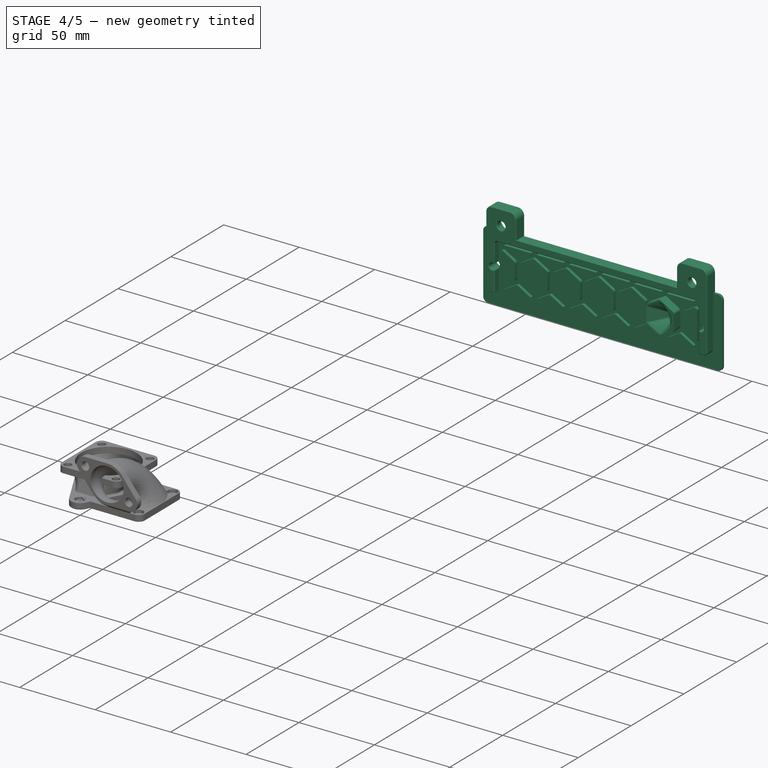
[diagram: stage 4 of 5 — iso view after this stage's code; geometry added in this stage tinted green]
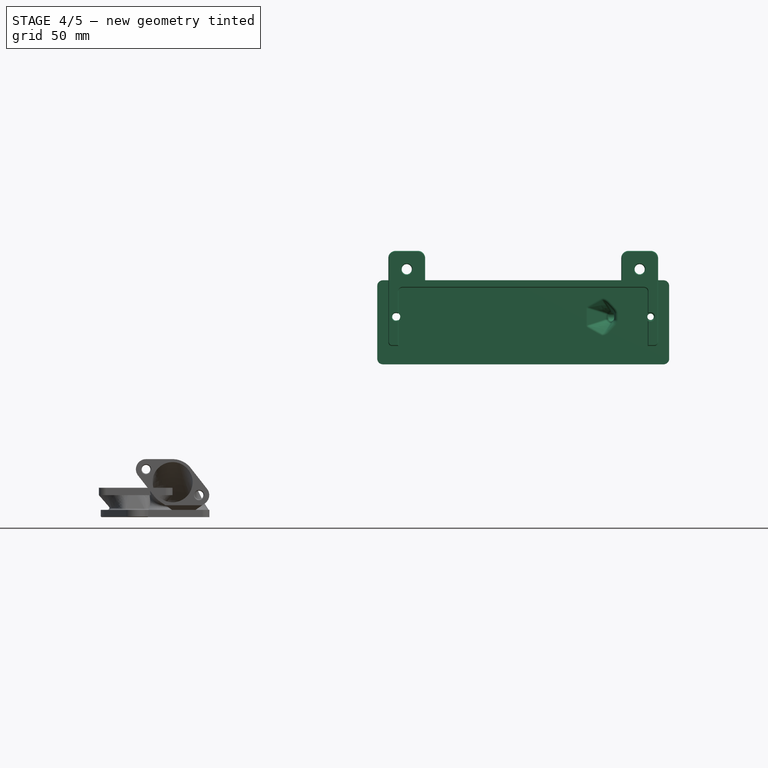
[diagram: stage 4 of 5 — front view after this stage's code; geometry added in this stage tinted green]
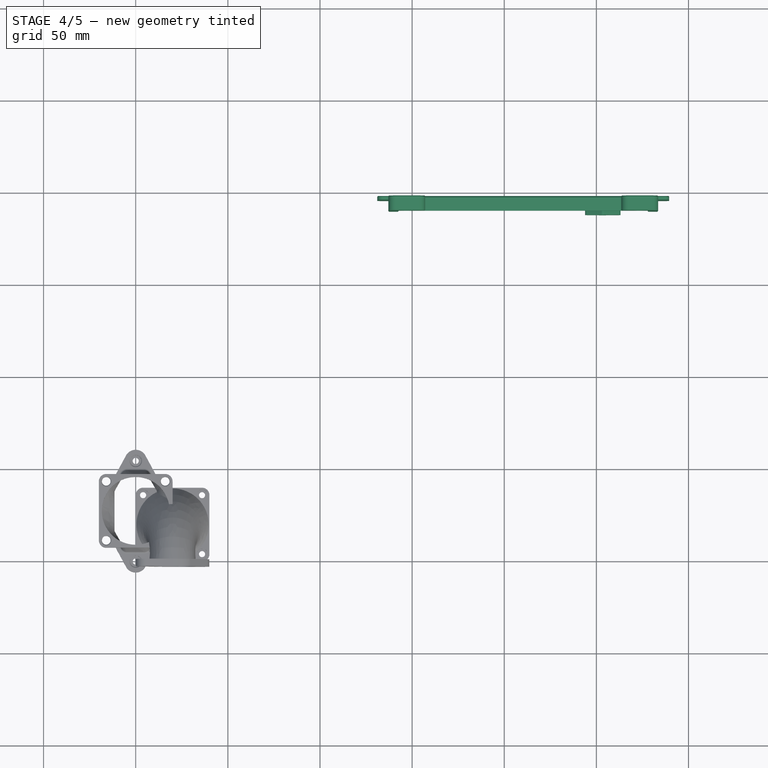
[diagram: stage 4 of 5 — top view after this stage's code; geometry added in this stage tinted green]
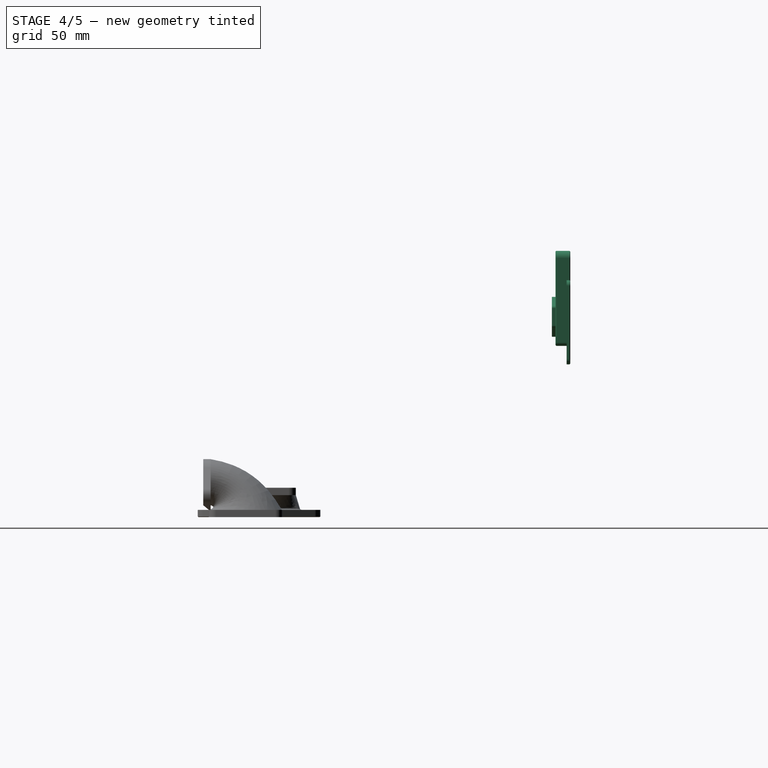
[diagram: stage 4 of 5 — right view after this stage's code; geometry added in this stage tinted green]
FEATURE [Part::Feature] Part__Feature1575  label="ExhaustCover"
  Placement = pos=(294.235,-150.293,-22.2786) rot=(0,0,1;1.5708rad)
  shape: bbox 13.09 x 158.4 x 61.6 mm, 345 faces (baked)
FEATURE [App::Point] Origin001
  Role = Origin
FEATURE [PartDesign::FeatureBase] BaseFeature
  BaseFeature = -> Part__Feature1575
  Suppressed = false
FEATURE [PartDesign::Chamfer] Chamfer001  label="CornersChamfer"
  Angle = 45
  Base = -> Pad001 [Edge12,Edge22,Edge33,Edge32,Edge212,Edge215,Edge200,Edge206,Edge57,Edge39]
  BaseFeature = -> Pad001
  ChamferType = 0
  FlipDirection = false
  Refine = true
  Size = 0.4
  Size2 = 1
  SupportTransform = false
  Suppressed = false
  UseAllEdges = false
FEATURE [PartDesign::Fillet] Fillet  label="ExhaustFlangeFillet"
  Base = -> Chamfer001 [Edge21]
  BaseFeature = -> Chamfer001
  Radius = 1
  Refine = true
  SupportTransform = false
  Suppressed = false
  UseAllEdges = false
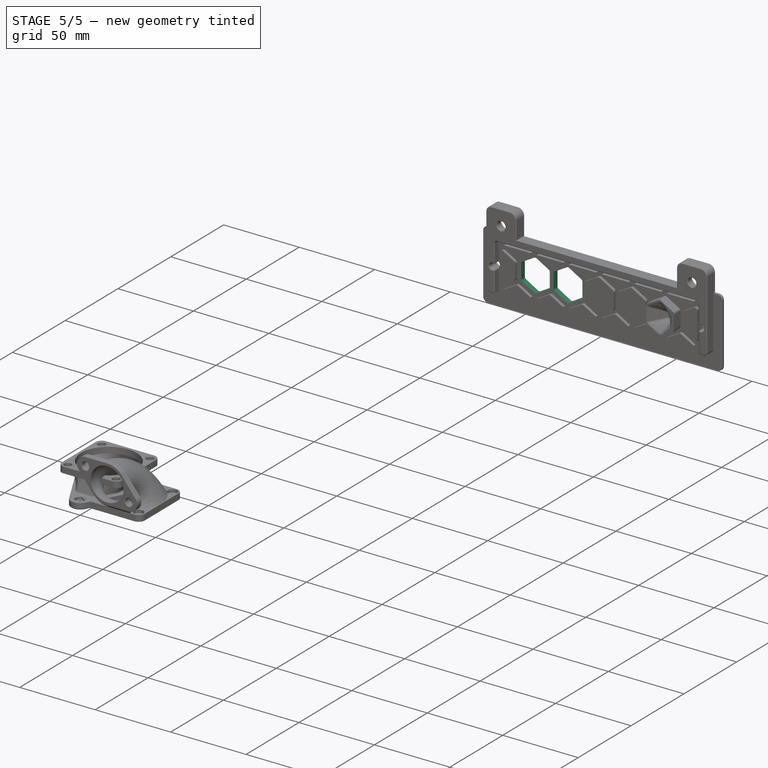
[diagram: stage 5 of 5 — iso view after this stage's code; geometry added in this stage tinted green]
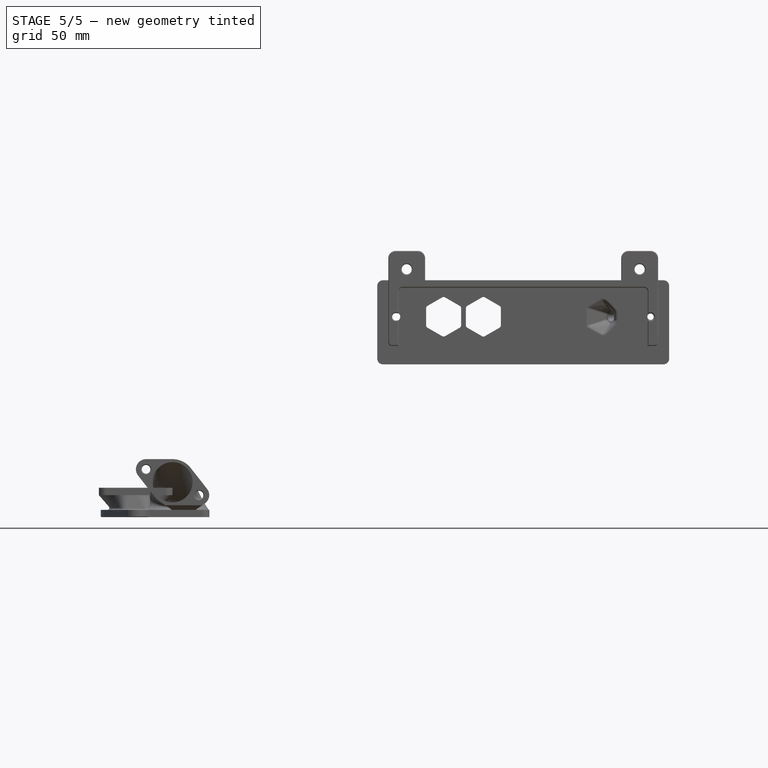
[diagram: stage 5 of 5 — front view after this stage's code; geometry added in this stage tinted green]
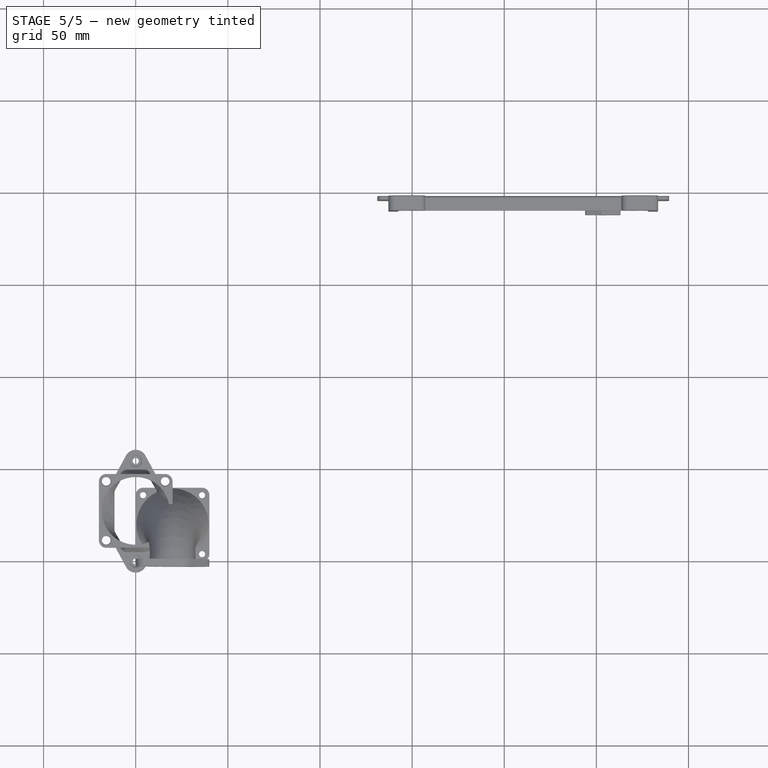
[diagram: stage 5 of 5 — top view after this stage's code; geometry added in this stage tinted green]
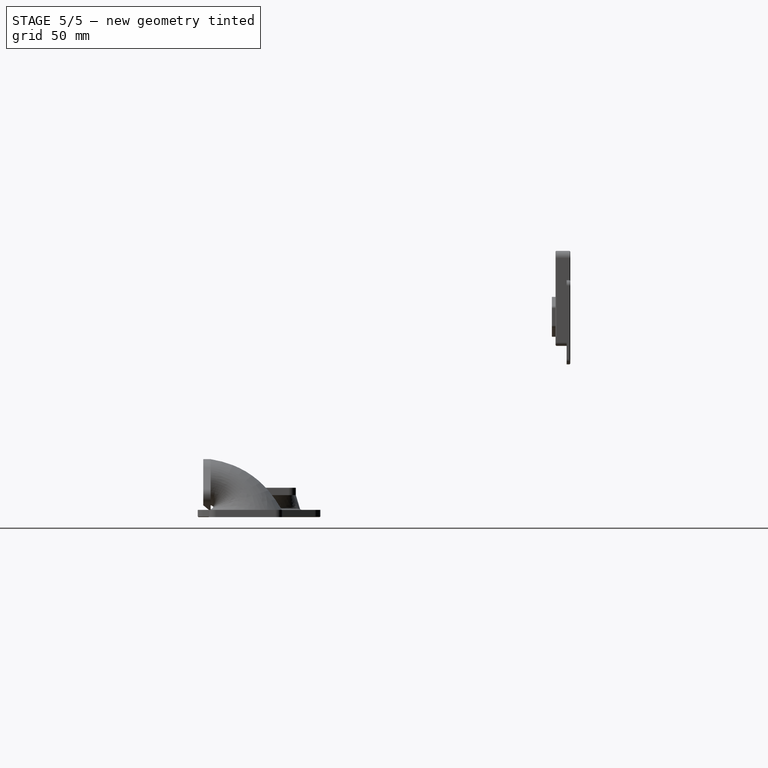
[diagram: stage 5 of 5 — right view after this stage's code; geometry added in this stage tinted green]
FEATURE [PartDesign::Pocket] Pocket
  BaseFeature = -> BaseFeature
  Direction = (0,1,0)
  Length = 5
  Length2 = 5
  Profile = -> BaseFeature [Face72,Face158]
  Refine = true
  SideType = 0
  Suppressed = false
  Type = 1
  Type2 = 0
FEATURE [Sketcher::SketchObject] Sketch
  ArcFitTolerance = 1e-06
  AttachmentSupport = -> [Pocket]
  ExternalGeometry = -> [Pocket]
  ExternalTypes = [0,0]
  FullyConstrained = true
  MakeInternals = false
  MapMode = 5
  Placement = pos=(2.55217e-11,196.2,-3.218e-13) rot=(0,0.707107,0.707107;3.14159rad)
  _ExternalGeoVersion = 1
  sketch-geometry (3):
    g0: Circle CenterX=-205.193 CenterY=108.757 CenterZ=0 NormalX=0 NormalY=0 NormalZ=1 AngleXU=0 Radius=2.35
    g1: Circle CenterX=-150.593 CenterY=108.757 CenterZ=0 NormalX=0 NormalY=0 NormalZ=1 AngleXU=0 Radius=2.35
    g2: LineSegment [constr] StartX=-205.193 StartY=108.757 StartZ=0 EndX=-150.593 EndY=108.757 EndZ=0
  constraints (7):
    c: Diameter(g1) = 4.7
    c: Equal(g1,g0)
    c: Coincident(g2,g0)
    c: Coincident(g2,g1)
    c: Symmetric(g-3,g-3,g2)
    c: Distance(g0,g-4) = 7
    c: Distance(g1,g-3) = 7
FEATURE [PartDesign::Pocket] Pocket001
  BaseFeature = -> Pocket
  Direction = (-1.301e-13,-1,1.8e-15)
  Length = 5
  Length2 = 5
  Profile = -> Sketch
  ReferenceAxis = -> Sketch [N_Axis]
  Refine = true
  SideType = 0
  Suppressed = false
  Type = 0
  Type2 = 0
FEATURE [App::Point] Origin003
  Role = Origin
FEATURE [PartDesign::Chamfer] Chamfer
  Angle = 45
  Base = -> Pocket001 [Edge49,Edge24,Edge29,Edge44]
  BaseFeature = -> Pocket001
  ChamferType = 0
  FlipDirection = false
  Refine = true
  Size = 0.4
  Size2 = 1
  SupportTransform = false
  Suppressed = false
  UseAllEdges = false
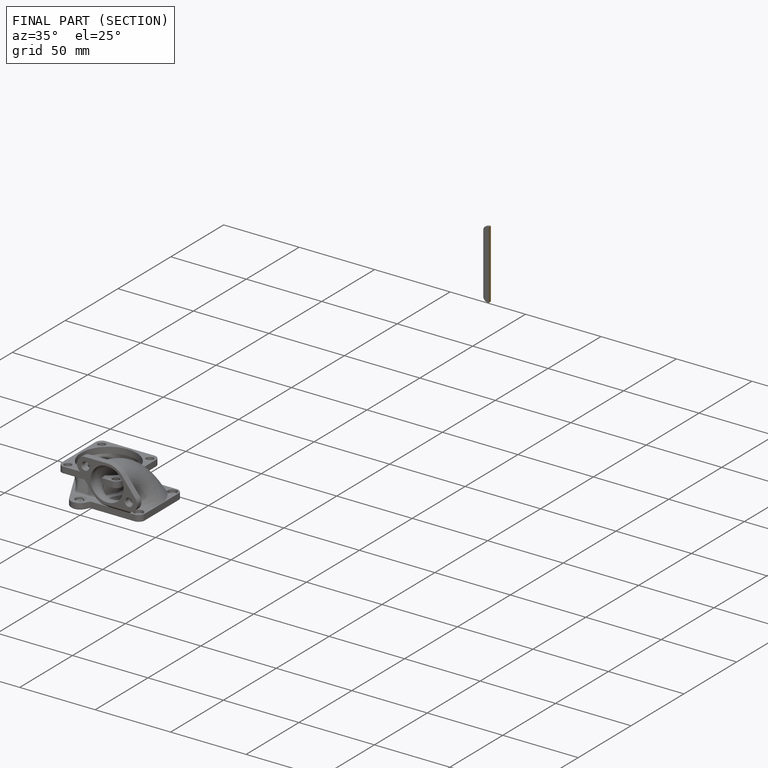
[diagram: finished part — half-section view (interior)]
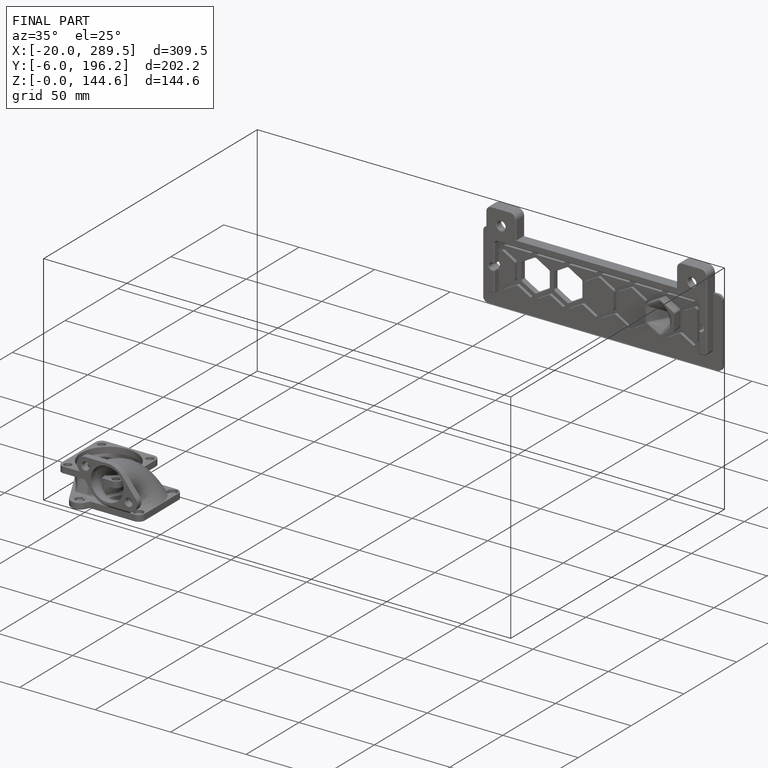
[diagram: finished part — iso view with bounding-box wireframe]
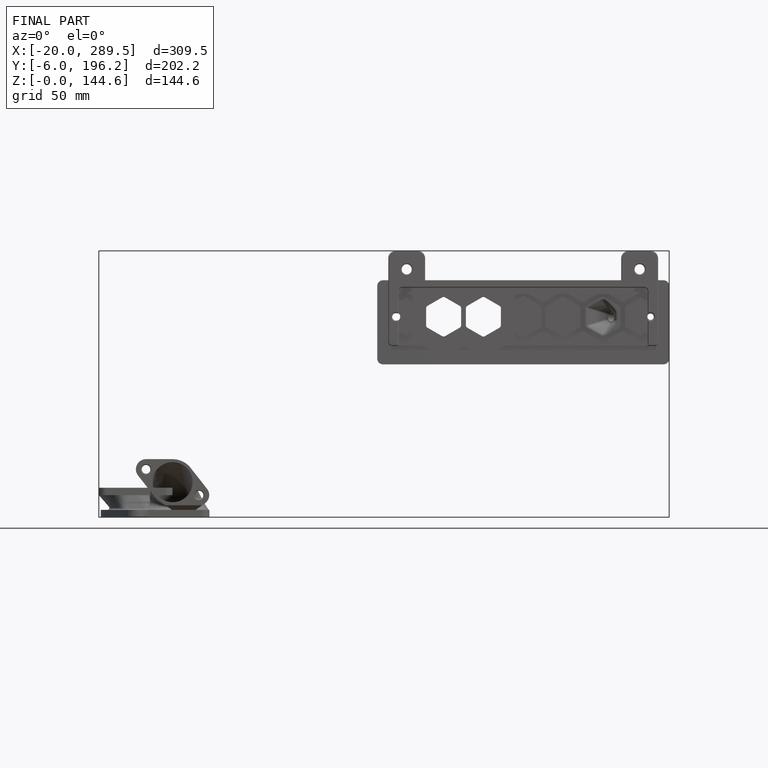
[diagram: finished part — front view with bounding-box wireframe]
